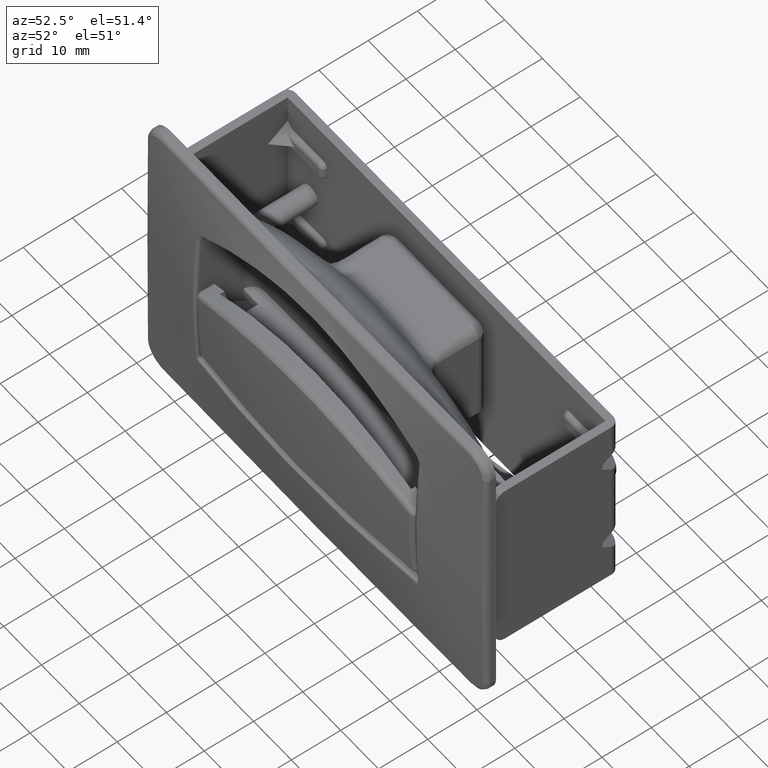
[diagram: clean part render]
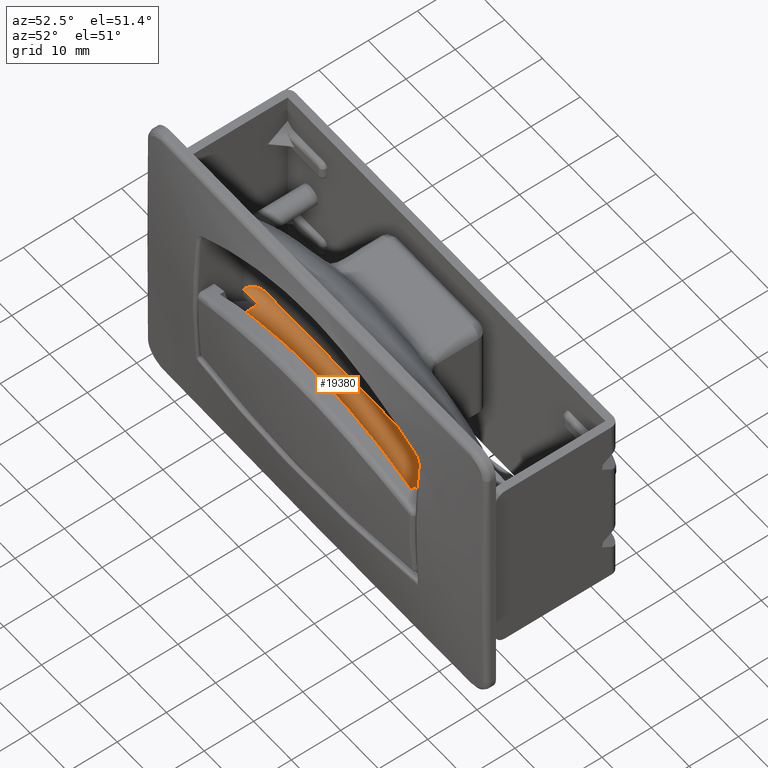
[diagram: same view with one face highlighted and labeled with its STEP entity id]
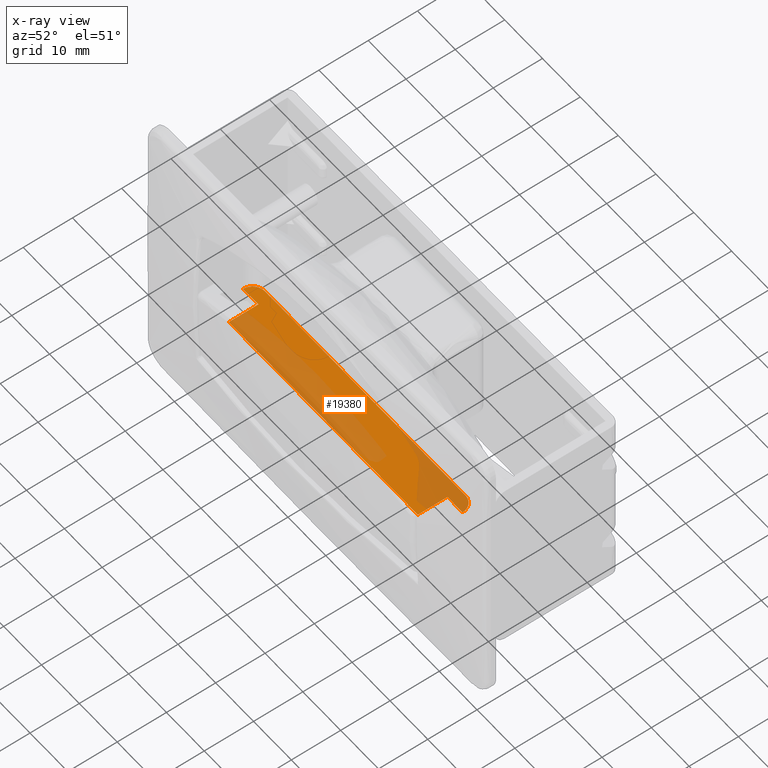
[diagram: x-ray of the same camera — body ghosted, the highlighted face saturated]
A machine part, auxiliary view. The second image highlights one B-rep face of the part: STEP entity #19380.
The next image is the same camera in x-ray: the body ghosted, the highlighted face saturated — about 48% of this face is hidden behind the body in this view.
In plain terms, the highlighted face is a freeform B-spline surface patch.
Its self-contained STEP definition (entity closure, byte-faithful):
#18013=CARTESIAN_POINT('',(25.0,5.500000000000000,27.000000000145000));
#18014=VERTEX_POINT('',#18013);
#18020=CARTESIAN_POINT('',(25.0,-0.499999999999834,27.000000000145000));
#18021=VERTEX_POINT('',#18020);
#18022=CARTESIAN_POINT('',(25.0,5.500000000000000,27.000000000145000));
#18023=CARTESIAN_POINT('',(25.0,-0.499999999999834,27.000000000145000));
#18024=QUASI_UNIFORM_CURVE('',1,(#18022,#18023),.UNSPECIFIED.,.F.,.U.);
#18025=EDGE_CURVE('',#18014,#18021,#18024,.T.);
#18042=CARTESIAN_POINT('',(-25.0,-0.499999999999834,27.000000000145000));
#18043=VERTEX_POINT('',#18042);
#18049=CARTESIAN_POINT('',(-25.0,5.500000000000000,27.000000000145000));
#18050=VERTEX_POINT('',#18049);
#18051=CARTESIAN_POINT('',(-25.0,5.500000000000000,27.000000000145000));
#18052=CARTESIAN_POINT('',(-25.0,-0.499999999999834,27.000000000145000));
#18053=QUASI_UNIFORM_CURVE('',1,(#18051,#18052),.UNSPECIFIED.,.F.,.U.);
#18054=EDGE_CURVE('',#18050,#18043,#18053,.T.);
#19019=CARTESIAN_POINT('',(-26.500000000000000,8.0,27.000000000143551));
#19020=VERTEX_POINT('',#19019);
#19021=CARTESIAN_POINT('',(26.500000000000000,8.0,27.000000000193751));
#19022=VERTEX_POINT('',#19021);
#19023=CARTESIAN_POINT('',(-26.500000000000000,8.0,27.000000000143551));
#19024=CARTESIAN_POINT('',(26.500000000000000,8.0,27.000000000193751));
#19025=QUASI_UNIFORM_CURVE('',1,(#19023,#19024),.UNSPECIFIED.,.F.,.U.);
#19026=EDGE_CURVE('',#19020,#19022,#19025,.T.);
#19322=CARTESIAN_POINT('',(-25.0,-0.499999999999834,27.000000000145000));
#19323=CARTESIAN_POINT('',(25.0,-0.499999999999834,27.000000000145000));
#19324=QUASI_UNIFORM_CURVE('',1,(#19322,#19323),.UNSPECIFIED.,.F.,.U.);
#19325=EDGE_CURVE('',#18043,#18021,#19324,.T.);
#19331=CARTESIAN_POINT('',(-31.897099887584741,-0.924574983525178,27.000000000138460));
#19332=CARTESIAN_POINT('',(31.897101443265971,-0.924574983525178,27.000000000198860));
#19333=CARTESIAN_POINT('',(-31.897099887584741,8.424575211513107,27.000000000138460));
#19334=CARTESIAN_POINT('',(31.897101443265971,8.424575211513107,27.000000000198860));
#19335=B_SPLINE_SURFACE_WITH_KNOTS('',1,1,((#19331,#19333),(#19332,#19334)),.UNSPECIFIED.,.F.,.F.,.U.,(2,2),(2,2),(0.0,63.794201330850719),(0.0,9.349150195038284),.UNSPECIFIED.);
#19336=CARTESIAN_POINT('',(29.0,5.500000000000000,27.000000000141199));
#19337=VERTEX_POINT('',#19336);
#19338=CARTESIAN_POINT('',(29.0,5.500000000000000,27.000000000141199));
#19339=CARTESIAN_POINT('',(25.0,5.500000000000000,27.000000000145000));
#19340=QUASI_UNIFORM_CURVE('',1,(#19338,#19339),.UNSPECIFIED.,.F.,.U.);
#19341=EDGE_CURVE('',#19337,#18014,#19340,.T.);
#19342=ORIENTED_EDGE('',*,*,#19341,.F.);
#19343=CARTESIAN_POINT('',(29.0,5.500000000000000,27.000000000141199));
#19344=CARTESIAN_POINT('',(29.000464135800009,5.847788561334545,27.000000000148791));
#19345=CARTESIAN_POINT('',(28.882844534053969,6.399637331409556,27.000000000160941));
#19346=CARTESIAN_POINT('',(28.511912422603849,7.018225386796285,27.000000000174040));
#19347=CARTESIAN_POINT('',(28.115137662320521,7.435018393373730,27.000000000182890));
#19348=CARTESIAN_POINT('',(27.635385052382809,7.755607898724414,27.000000000189509));
#19349=CARTESIAN_POINT('',(27.072673538196149,7.956912507224936,27.000000000193129));
#19350=CARTESIAN_POINT('',(26.684070675065851,8.000025924298791,27.000000000194220));
#19351=CARTESIAN_POINT('',(26.500000000000000,8.0,27.000000000193751));
#19352=B_SPLINE_CURVE_WITH_KNOTS('',3,(#19343,#19344,#19345,#19346,#19347,#19348,#19349,#19350,#19351),.UNSPECIFIED.,.F.,.U.,(4,1,1,1,1,1,4),(0.000000174705963,1.043135208651072,1.656773964980771,2.147586294386577,2.761234643828082,3.374863949548156,3.927089360845621),.UNSPECIFIED.);
#19353=EDGE_CURVE('',#19337,#19022,#19352,.T.);
#19354=ORIENTED_EDGE('',*,*,#19353,.T.);
#19355=ORIENTED_EDGE('',*,*,#19026,.F.);
#19356=CARTESIAN_POINT('',(-29.0,5.500000000000000,27.000000000141199));
#19357=VERTEX_POINT('',#19356);
#19358=CARTESIAN_POINT('',(-26.500000000000000,8.0,27.000000000143551));
#19359=CARTESIAN_POINT('',(-26.765902530805501,8.000138015714104,27.000000000143292));
#19360=CARTESIAN_POINT('',(-27.215786448185959,7.927523887324831,27.000000000142929));
#19361=CARTESIAN_POINT('',(-27.758337466317851,7.678947076443021,27.000000000142322));
#19362=CARTESIAN_POINT('',(-28.190940828794439,7.366293434454170,27.000000000141998));
#19363=CARTESIAN_POINT('',(-28.536883511516489,6.984570034770256,27.000000000141590));
#19364=CARTESIAN_POINT('',(-28.891522989836950,6.358717527262304,27.000000000141359));
#19365=CARTESIAN_POINT('',(-29.000486123586072,5.847803300195314,27.000000000141011));
#19366=CARTESIAN_POINT('',(-29.0,5.500000000000000,27.000000000141199));
#19367=B_SPLINE_CURVE_WITH_KNOTS('',3,(#19358,#19359,#19360,#19361,#19362,#19363,#19364,#19365,#19366),.UNSPECIFIED.,.F.,.U.,(4,1,1,1,1,1,4),(0.000000174707761,0.797681515170642,1.349954027695626,1.779499232061135,2.393066717112081,2.883952936653053,3.927089360845599),.UNSPECIFIED.);
#19368=EDGE_CURVE('',#19020,#19357,#19367,.T.);
#19369=ORIENTED_EDGE('',*,*,#19368,.T.);
#19370=CARTESIAN_POINT('',(-29.0,5.500000000000000,27.000000000141199));
#19371=CARTESIAN_POINT('',(-25.0,5.500000000000000,27.000000000145000));
#19372=QUASI_UNIFORM_CURVE('',1,(#19370,#19371),.UNSPECIFIED.,.F.,.U.);
#19373=EDGE_CURVE('',#19357,#18050,#19372,.T.);
#19374=ORIENTED_EDGE('',*,*,#19373,.T.);
#19375=ORIENTED_EDGE('',*,*,#18054,.T.);
#19376=ORIENTED_EDGE('',*,*,#19325,.T.);
#19377=ORIENTED_EDGE('',*,*,#18025,.F.);
#19378=EDGE_LOOP('',(#19342,#19354,#19355,#19369,#19374,#19375,#19376,#19377));
#19379=FACE_OUTER_BOUND('',#19378,.T.);
#19380=ADVANCED_FACE('',(#19379),#19335,.T.);